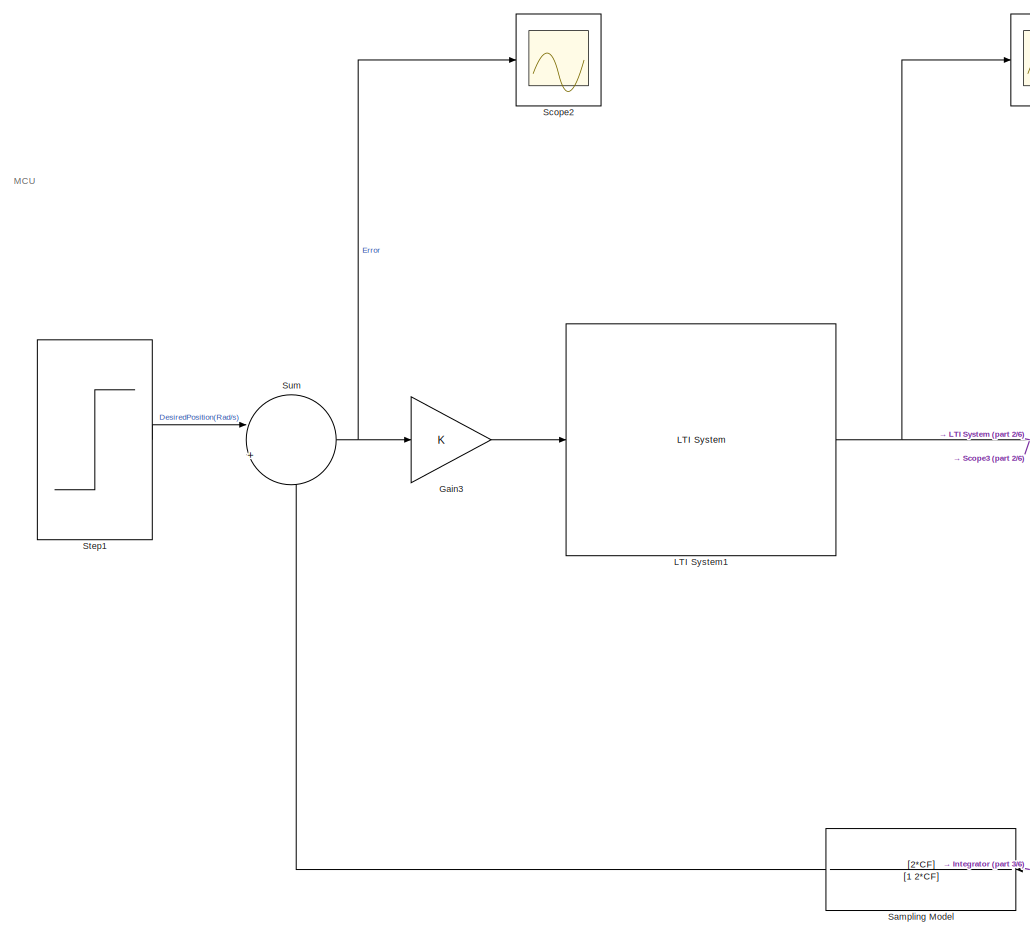
[diagram: root canvas - part 1/6, top left region]
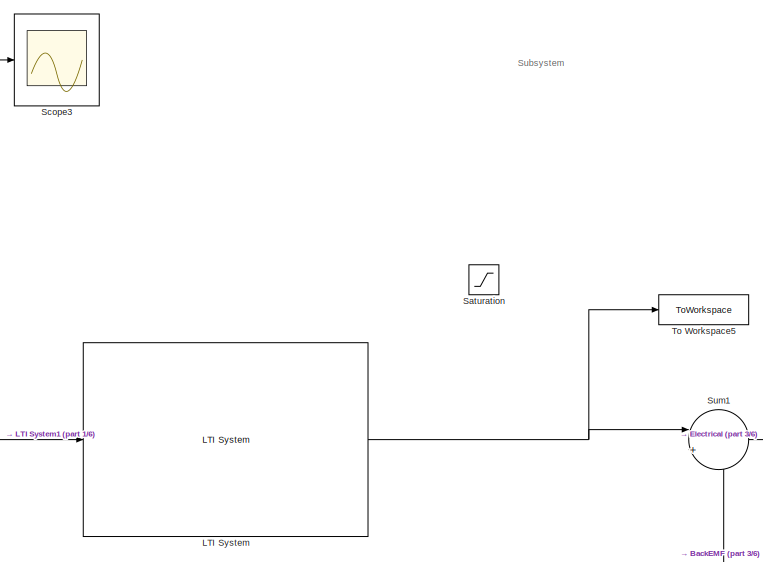
[diagram: root canvas - part 2/6, top center region]
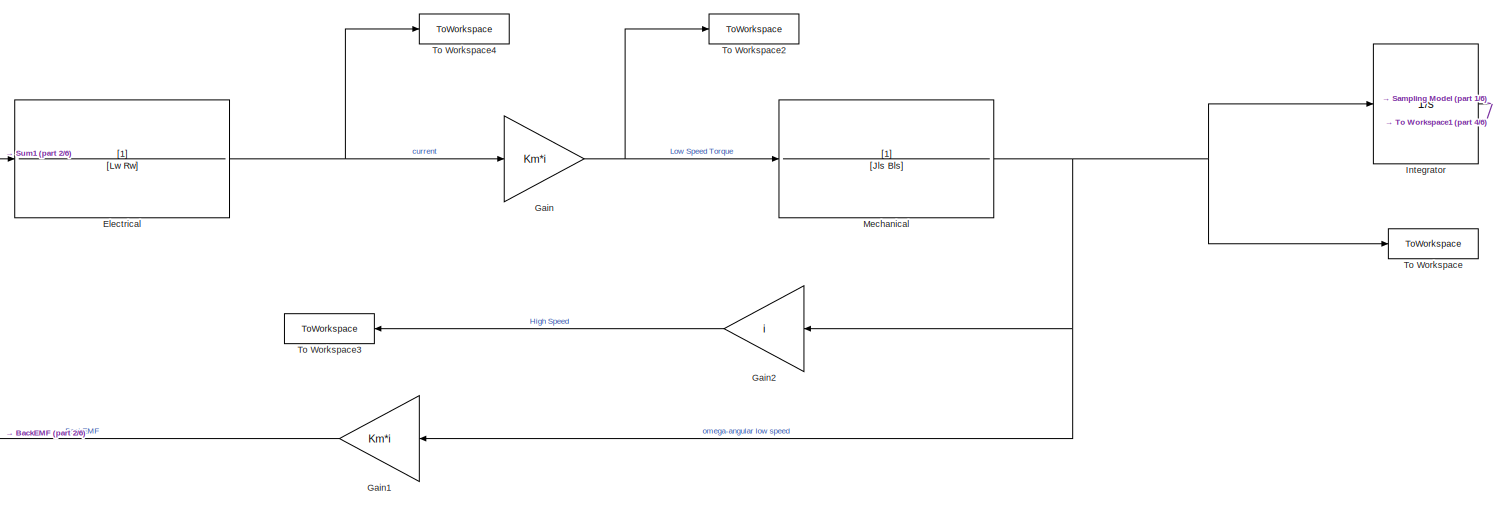
[diagram: root canvas - part 3/6, top right region]
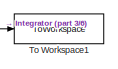
[diagram: root canvas - part 4/6, top right region]
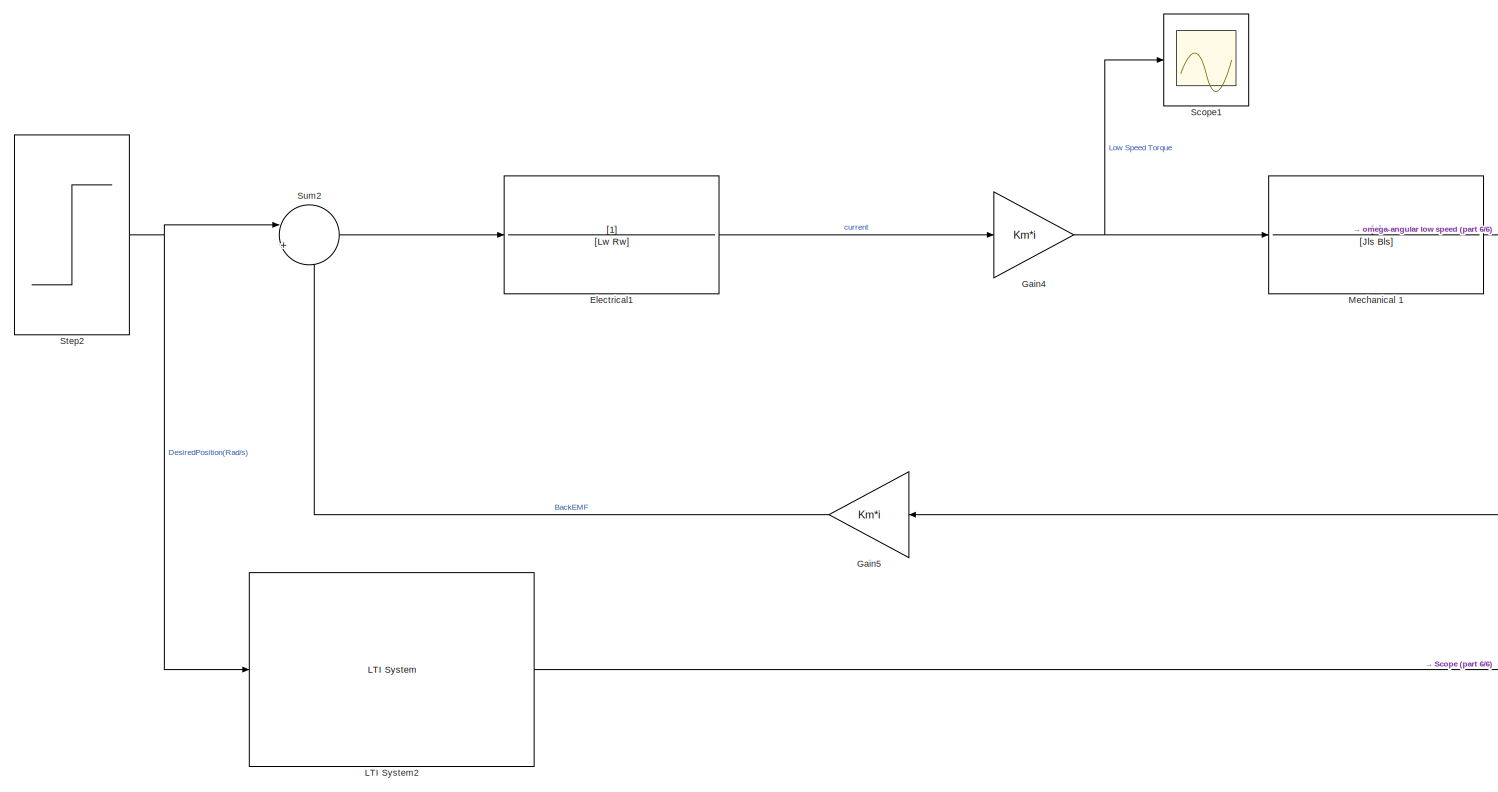
[diagram: root canvas - part 5/6, bottom center region]
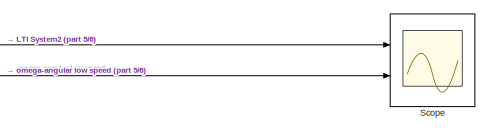
[diagram: root canvas - part 6/6, bottom right region]
MODEL slx_4b6dde0f47c3
KIND model
CONFIG AbsTol = auto
CONFIG EnableMultiTasking = off
CONFIG FixedStep = auto
CONFIG MaxStep = auto
CONFIG MinStep = auto
CONFIG RelTol = 1e-3
CONFIG SampleTimeConstraint = Unconstrained
CONFIG SolverName = VariableStepAuto
CONFIG StartTime = 0.0
CONFIG StopTime = 0.2
BLOCK [TransferFcn] Electrical
  Denominator = [Lw Rw]
BLOCK [TransferFcn] Electrical1
  Denominator = [Lw Rw]
BLOCK [Gain] Gain
  Gain = Km*i
BLOCK [Gain] Gain1
  Gain = Km*i
  NameLocation = top
BLOCK [Gain] Gain2
  Gain = i
  NameLocation = top
BLOCK [Gain] Gain3
  Gain = K
BLOCK [Gain] Gain4
  Gain = Km*i
BLOCK [Gain] Gain5
  Gain = Km*i
  NameLocation = top
BLOCK [Integrator] Integrator
  Ports = [1, 1]
BLOCK [Reference] LTI System  REF=cstblocks/LTI System
  Ports = [1, 1]
  SourceBlock = cstblocks/LTI System
  SourceProductBaseCode = CT
  SourceType = LTI Block
BLOCK [Reference] LTI System1  REF=cstblocks/LTI System
  Ports = [1, 1]
  SourceBlock = cstblocks/LTI System
  SourceProductBaseCode = CT
  SourceType = LTI Block
BLOCK [Reference] LTI System2  REF=cstblocks/LTI System
  Ports = [1, 1]
  SourceBlock = cstblocks/LTI System
  SourceProductBaseCode = CT
  SourceType = LTI Block
BLOCK [TransferFcn] Mechanical 
  Denominator = [Jls Bls]
BLOCK [TransferFcn] Mechanical 1
  Denominator = [Jls Bls]
BLOCK [TransferFcn] Sampling Model
  Denominator = [1 2*CF]
  NameLocation = top
  Numerator = [2*CF]
BLOCK [Saturate] Saturation
  LowerLimit = -24
  UpperLimit = 24
BLOCK [Scope] Scope
  Floating = off
  NumInputPorts = 2
  Ports = [2]
  ScopeSpecificationString = Simulink.scopes.TimeScopeBlockCfg('CurrentConfiguration', extmgr.ConfigurationSet(extmgr.Configuration('Core','General UI',true),extmgr.Configuration('Core','Source UI',true),extmgr.Configuration('Sources','WiredSimulink',true),extmgr.Configuration('Visuals','Time Domain',true,'SerializedDisplays',{struct('MinYLimReal','-1.24375','MaxYLimReal','11.19372','YLabelReal','','MinYLimMag','0.00000','Max...<+1391ch>
BLOCK [Scope] Scope1
  Floating = off
  NumInputPorts = 1
  Ports = [1]
  ScopeSpecificationString = Simulink.scopes.TimeScopeBlockCfg('CurrentConfiguration', extmgr.ConfigurationSet(extmgr.Configuration('Core','General UI',true,'FigureColor',[1 1 1]),extmgr.Configuration('Core','Source UI',true),extmgr.Configuration('Sources','WiredSimulink',true,'DataLoggingVariableName','ScopeData1'),extmgr.Configuration('Visuals','Time Domain',true,'SerializedDisplays',{struct('MinYLimReal','-1.89141','MaxYLi...<+1607ch>
BLOCK [Scope] Scope2
  Floating = off
  NumInputPorts = 1
  Ports = [1]
  ScopeSpecificationString = Simulink.scopes.TimeScopeBlockCfg('CurrentConfiguration', extmgr.ConfigurationSet(extmgr.Configuration('Core','General UI',true),extmgr.Configuration('Core','Source UI',true),extmgr.Configuration('Sources','WiredSimulink',true,'DataLoggingVariableName','ScopeData2'),extmgr.Configuration('Visuals','Time Domain',true,'SerializedDisplays',{struct('MinYLimReal','-0.21885','MaxYLimReal','1.76965','YLab...<+1420ch>
BLOCK [Scope] Scope3
  Floating = off
  NumInputPorts = 1
  Ports = [1]
  ScopeSpecificationString = Simulink.scopes.TimeScopeBlockCfg('CurrentConfiguration', extmgr.ConfigurationSet(extmgr.Configuration('Core','General UI',true),extmgr.Configuration('Core','Source UI',true),extmgr.Configuration('Sources','WiredSimulink',true,'DataLoggingVariableName','ScopeData3'),extmgr.Configuration('Visuals','Time Domain',true,'SerializedDisplays',{struct('MinYLimReal','-3.53366','MaxYLimReal','31.70686','YLa...<+1417ch>
BLOCK [Step] Step1
  After = ExpectedPosition
  SampleTime = sampleTime
  Time = 0
BLOCK [Step] Step2
  After = 24
  SampleTime = sampleTime
  Time = 0
BLOCK [Sum] Sum
  Inputs = |+-
  Ports = [2, 1]
BLOCK [Sum] Sum1
  Inputs = |+-
  Ports = [2, 1]
BLOCK [Sum] Sum2
  Inputs = |+-
  Ports = [2, 1]
BLOCK [ToWorkspace] To Workspace
  FixptAsFi = on
  MaxDataPoints = inf
  Ports = [1]
  SampleTime = sampleTime
  SaveFormat = Timeseries
  VariableName = AngularVelocityM
BLOCK [ToWorkspace] To Workspace1
  FixptAsFi = on
  MaxDataPoints = inf
  Ports = [1]
  SampleTime = -1
  SaveFormat = Timeseries
  VariableName = position
BLOCK [ToWorkspace] To Workspace2
  FixptAsFi = on
  MaxDataPoints = inf
  Ports = [1]
  SampleTime = -1
  SaveFormat = Timeseries
  VariableName = torque
BLOCK [ToWorkspace] To Workspace3
  FixptAsFi = on
  MaxDataPoints = inf
  NameLocation = top
  Ports = [1]
  SampleTime = sampleTime
  SaveFormat = Timeseries
  VariableName = AngularVelocityM1
BLOCK [ToWorkspace] To Workspace4
  FixptAsFi = on
  MaxDataPoints = inf
  Ports = [1]
  SampleTime = -1
  SaveFormat = Timeseries
  VariableName = current
BLOCK [ToWorkspace] To Workspace5
  FixptAsFi = on
  MaxDataPoints = inf
  Ports = [1]
  SampleTime = -1
  SaveFormat = Timeseries
  VariableName = voltage
ANNOTATION (root): MCU
ANNOTATION (root): Subsystem
LINE Electrical1:1 -> Gain4:1
NET Electrical:1 -> Gain:1, To Workspace4:1
LINE Gain1:1 -> Sum1:2
LINE Gain2:1 -> To Workspace3:1
LINE Gain3:1 -> LTI System1:1
NET Gain4:1 -> Mechanical 1:1, Scope1:1
LINE Gain5:1 -> Sum2:2
NET Gain:1 -> Mechanical :1, To Workspace2:1
NET Integrator:1 -> Sampling Model:1, To Workspace1:1
NET LTI System1:1 -> LTI System:1, Scope3:1
LINE LTI System2:1 -> Scope:1
NET LTI System:1 -> Sum1:1, To Workspace5:1
NET Mechanical 1:1 -> Gain5:1, Scope:2
NET Mechanical :1 -> Gain1:1, Gain2:1, Integrator:1, To Workspace:1
LINE Sampling Model:1 -> Sum:2
LINE Step1:1 -> Sum:1
NET Step2:1 -> LTI System2:1, Sum2:1
LINE Sum1:1 -> Electrical:1
LINE Sum2:1 -> Electrical1:1
NET Sum:1 -> Gain3:1, Scope2:1
note: NET lines group one-source signal fan-out (src -> all destinations, sorted); 1:1 wires keep LINE
